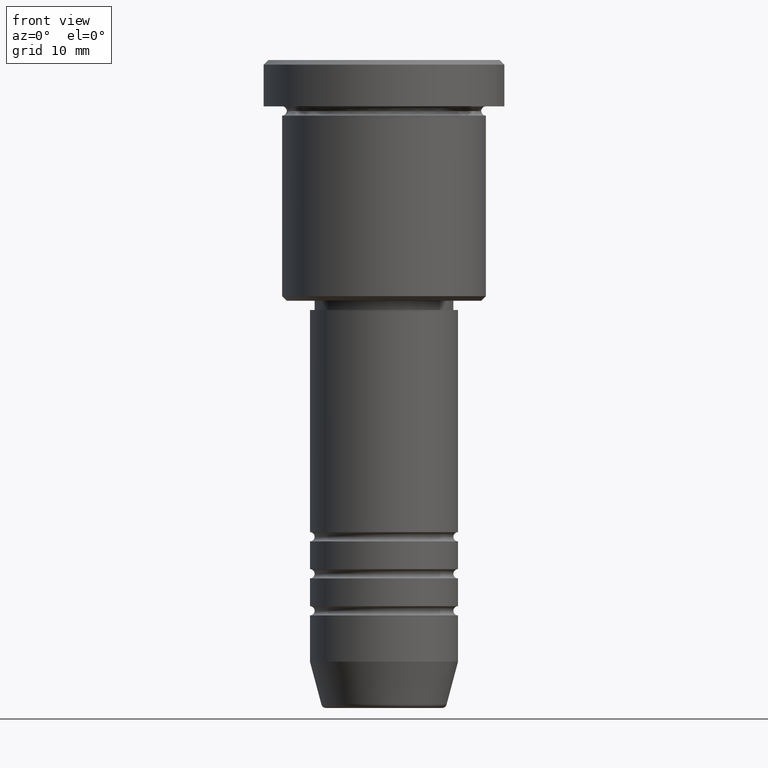
[diagram: clean part render]
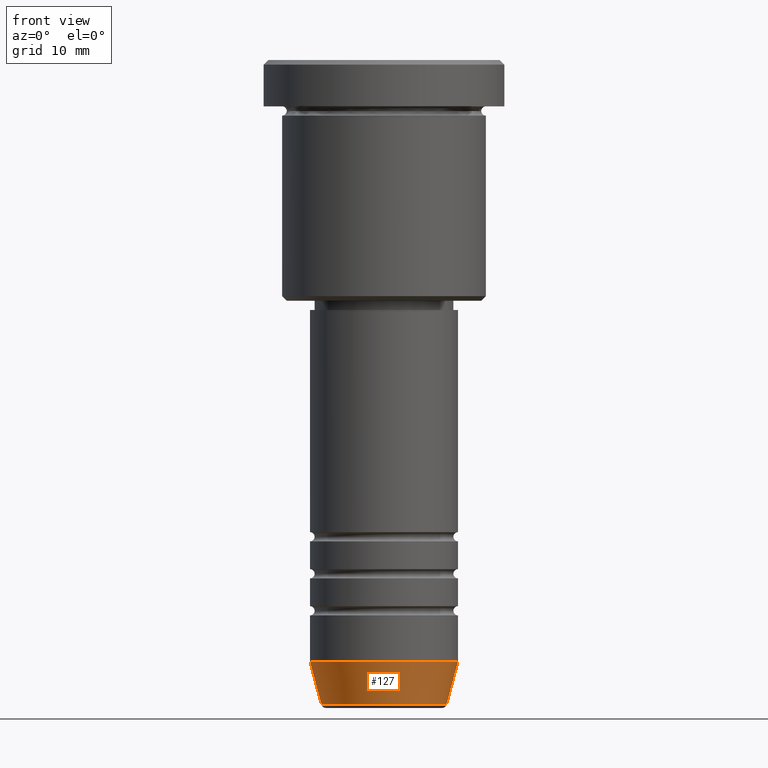
[diagram: same view with one face highlighted and labeled with its STEP entity id]
A machine part, front view. The second image highlights one B-rep face of the part: STEP entity #127.
In plain terms, the highlighted conical surface has half-angle 15 deg.
Its self-contained STEP definition (entity closure, byte-faithful):
#79 = CONICAL_SURFACE ( 'NONE', #788, 8.000000000000000000, 0.2617993877991502405 ) ;
#96 = AXIS2_PLACEMENT_3D ( 'NONE', #217, #597, #515 ) ;
#104 = EDGE_CURVE ( 'NONE', #1140, #510, #168, .T. ) ;
#127 = ADVANCED_FACE ( 'NONE', ( #399 ), #79, .T. ) ;
#145 = DIRECTION ( 'NONE',  ( 1.000000000000000000, 0.000000000000000000, 0.000000000000000000 ) ) ;
#155 = CARTESIAN_POINT ( 'NONE',  ( 8.000000000000000000, 0.000000000000000000, -65.00000000000000000 ) ) ;
#168 = CIRCLE ( 'NONE', #96, 8.000000000000000000 ) ;
#175 = EDGE_LOOP ( 'NONE', ( #1016, #531, #213, #1074 ) ) ;
#181 = EDGE_CURVE ( 'NONE', #315, #510, #247, .T. ) ;
#213 = ORIENTED_EDGE ( 'NONE', *, *, #181, .T. ) ;
#217 = CARTESIAN_POINT ( 'NONE',  ( 0.000000000000000000, 0.000000000000000000, -65.00000000000000000 ) ) ;
#224 = DIRECTION ( 'NONE',  ( -0.2588190451025214611, 3.169619151431774186E-17, 0.9659258262890679791 ) ) ;
#247 = LINE ( 'NONE', #155, #395 ) ;
#260 = CARTESIAN_POINT ( 'NONE',  ( 8.000000000000000000, 0.000000000000000000, -65.00000000000000000 ) ) ;
#315 = VERTEX_POINT ( 'NONE', #568 ) ;
#364 = CIRCLE ( 'NONE', #828, 6.759553456999436882 ) ;
#395 = VECTOR ( 'NONE', #426, 1000.000000000000114 ) ;
#399 = FACE_OUTER_BOUND ( 'NONE', #175, .T. ) ;
#416 = VECTOR ( 'NONE', #224, 1000.000000000000114 ) ;
#426 = DIRECTION ( 'NONE',  ( 0.2588190451025214611, 0.000000000000000000, 0.9659258262890679791 ) ) ;
#510 = VERTEX_POINT ( 'NONE', #260 ) ;
#515 = DIRECTION ( 'NONE',  ( 1.000000000000000000, 0.000000000000000000, 0.000000000000000000 ) ) ;
#531 = ORIENTED_EDGE ( 'NONE', *, *, #949, .T. ) ;
#538 = EDGE_CURVE ( 'NONE', #804, #1140, #908, .T. ) ;
#568 = CARTESIAN_POINT ( 'NONE',  ( 6.759553456999436882, 0.000000000000000000, -69.62940952255127058 ) ) ;
#585 = CARTESIAN_POINT ( 'NONE',  ( -8.000000000000000000, 9.797174393178825657E-16, -65.00000000000000000 ) ) ;
#597 = DIRECTION ( 'NONE',  ( -0.000000000000000000, -0.000000000000000000, 1.000000000000000000 ) ) ;
#618 = CARTESIAN_POINT ( 'NONE',  ( 0.000000000000000000, 0.000000000000000000, -65.00000000000000000 ) ) ;
#788 = AXIS2_PLACEMENT_3D ( 'NONE', #618, #978, #145 ) ;
#804 = VERTEX_POINT ( 'NONE', #1105 ) ;
#828 = AXIS2_PLACEMENT_3D ( 'NONE', #1032, #1119, #1077 ) ;
#908 = LINE ( 'NONE', #585, #416 ) ;
#949 = EDGE_CURVE ( 'NONE', #804, #315, #364, .T. ) ;
#978 = DIRECTION ( 'NONE',  ( -0.000000000000000000, -0.000000000000000000, 1.000000000000000000 ) ) ;
#989 = CARTESIAN_POINT ( 'NONE',  ( -8.000000000000000000, 9.797174393178825657E-16, -65.00000000000000000 ) ) ;
#1016 = ORIENTED_EDGE ( 'NONE', *, *, #538, .F. ) ;
#1032 = CARTESIAN_POINT ( 'NONE',  ( 0.000000000000000000, 0.000000000000000000, -69.62940952255127058 ) ) ;
#1074 = ORIENTED_EDGE ( 'NONE', *, *, #104, .F. ) ;
#1077 = DIRECTION ( 'NONE',  ( 1.000000000000000000, 0.000000000000000000, 0.000000000000000000 ) ) ;
#1105 = CARTESIAN_POINT ( 'NONE',  ( -6.759553456999437770, 9.037619948979306213E-16, -69.62940952255127058 ) ) ;
#1119 = DIRECTION ( 'NONE',  ( -0.000000000000000000, -0.000000000000000000, 1.000000000000000000 ) ) ;
#1140 = VERTEX_POINT ( 'NONE', #989 ) ;